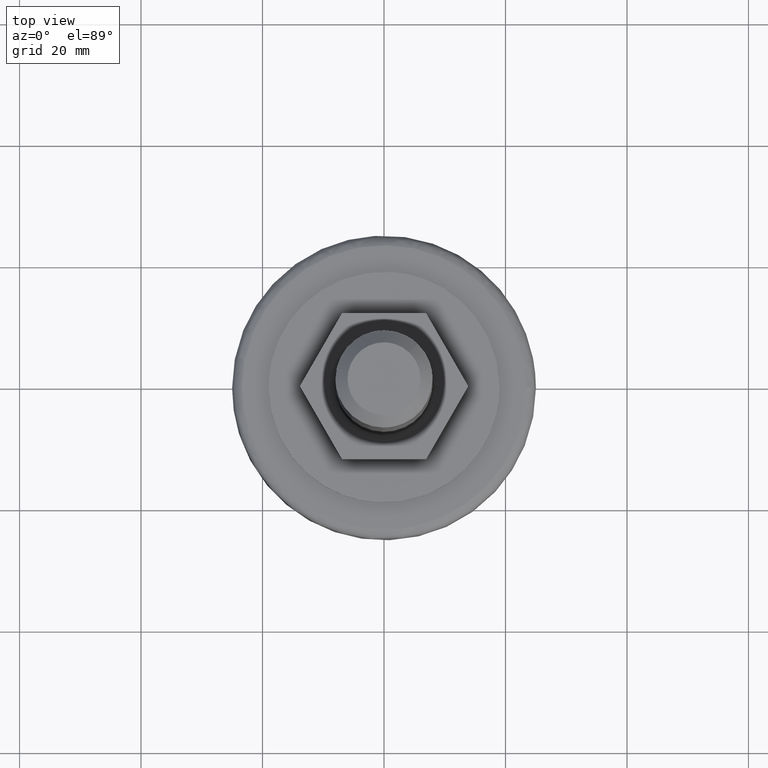
[diagram: clean part render]
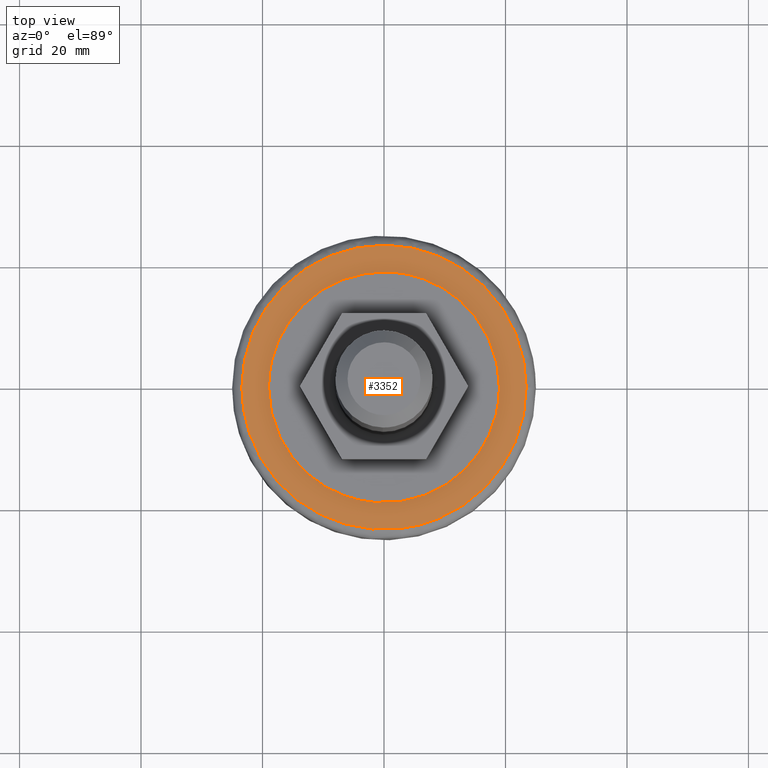
[diagram: same view with one face highlighted and labeled with its STEP entity id]
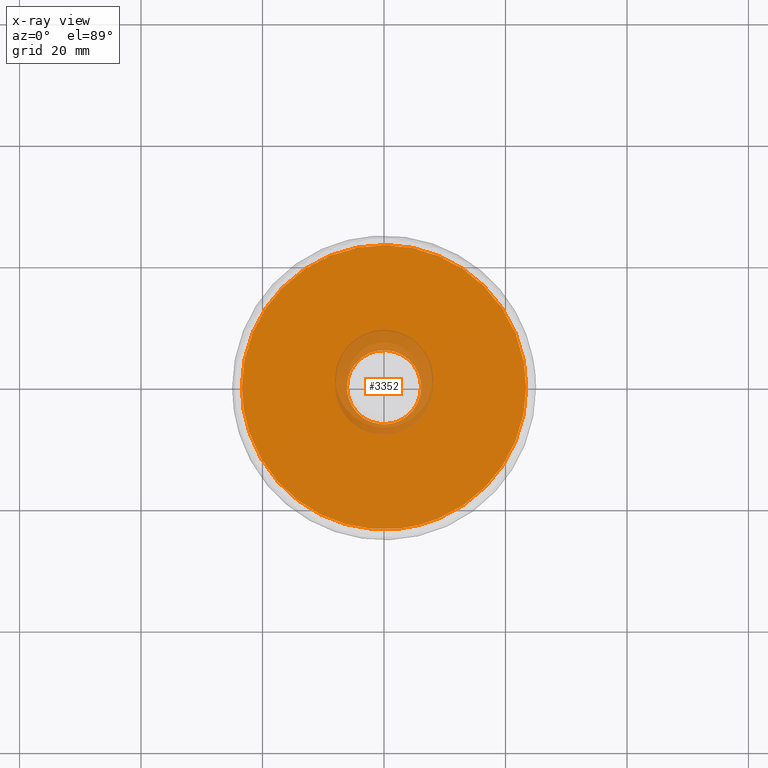
[diagram: x-ray of the same camera — body ghosted, the highlighted face saturated]
A machine part, top view. The second image highlights one B-rep face of the part: STEP entity #3352.
The next image is the same camera in x-ray: the body ghosted, the highlighted face saturated — about 7% of this face is hidden behind the body in this view.
In plain terms, the highlighted face is a freeform B-spline surface patch.
Its self-contained STEP definition (entity closure, byte-faithful):
#3030=CARTESIAN_POINT('',(0.372396091280524,-6.088622270366177,16.500000000000000));
#3031=VERTEX_POINT('',#3030);
#3037=CARTESIAN_POINT('',(6.100000000000001,0.0,16.500000000000000));
#3038=VERTEX_POINT('',#3037);
#3039=CARTESIAN_POINT('',(6.100000000000001,0.0,16.500000000000000));
#3040=CARTESIAN_POINT('',(6.100000000000001,-5.738307007902087,16.499999999999996));
#3041=CARTESIAN_POINT('',(0.372396091280524,-6.088622270366177,16.500000000000004));
#3049=(BOUNDED_CURVE()B_SPLINE_CURVE(2,(#3039,#3040,#3041),.UNSPECIFIED.,.F.,.U.)B_SPLINE_CURVE_WITH_KNOTS((3,3),(0.500000000000000,0.739332962235286),.UNSPECIFIED.)CURVE()GEOMETRIC_REPRESENTATION_ITEM()RATIONAL_B_SPLINE_CURVE((1.0,0.719603993290995,0.976072041658880))REPRESENTATION_ITEM(''));
#3050=EDGE_CURVE('',#3038,#3031,#3049,.T.);
#3052=CARTESIAN_POINT('',(-0.720008831480611,6.057358110809522,16.500000000000000));
#3053=VERTEX_POINT('',#3052);
#3054=CARTESIAN_POINT('',(-0.720008831480611,6.057358110809523,16.500000000000004));
#3055=CARTESIAN_POINT('',(-0.361267129951822,6.100000000000001,16.500000000000007));
#3056=CARTESIAN_POINT('',(0.0,6.100000000000001,16.500000000000000));
#3057=CARTESIAN_POINT('',(6.100000000000001,6.100000000000001,16.499999999999996));
#3058=CARTESIAN_POINT('',(6.100000000000001,0.0,16.500000000000000));
#3066=(BOUNDED_CURVE()B_SPLINE_CURVE(2,(#3054,#3055,#3056,#3057,#3058),.UNSPECIFIED.,.F.,.U.)B_SPLINE_CURVE_WITH_KNOTS((3,2,3),(0.229562473511494,0.250000000000000,0.500000000000000),.UNSPECIFIED.)CURVE()GEOMETRIC_REPRESENTATION_ITEM()RATIONAL_B_SPLINE_CURVE((0.956026754179750,0.976055948328785,1.0,0.707106781186547,1.0))REPRESENTATION_ITEM(''));
#3067=EDGE_CURVE('',#3053,#3038,#3066,.T.);
#3111=CARTESIAN_POINT('',(-6.100000000000001,0.0,16.500000000000000));
#3112=VERTEX_POINT('',#3111);
#3113=CARTESIAN_POINT('',(-6.100000000000001,0.0,16.500000000000000));
#3114=CARTESIAN_POINT('',(-6.100000000000001,5.417864608169345,16.500000000000004));
#3115=CARTESIAN_POINT('',(-0.720008831480611,6.057358110809522,16.500000000000000));
#3123=(BOUNDED_CURVE()B_SPLINE_CURVE(2,(#3113,#3114,#3115),.UNSPECIFIED.,.F.,.U.)B_SPLINE_CURVE_WITH_KNOTS((3,3),(0.0,0.229562473511494),.UNSPECIFIED.)CURVE()GEOMETRIC_REPRESENTATION_ITEM()RATIONAL_B_SPLINE_CURVE((1.0,0.731050832857763,0.956026754179750))REPRESENTATION_ITEM(''));
#3124=EDGE_CURVE('',#3112,#3053,#3123,.T.);
#3126=CARTESIAN_POINT('',(0.372396091280524,-6.088622270366177,16.500000000000004));
#3127=CARTESIAN_POINT('',(0.186371856239619,-6.100000000000001,16.500000000000004));
#3128=CARTESIAN_POINT('',(0.0,-6.100000000000001,16.500000000000000));
#3129=CARTESIAN_POINT('',(-6.100000000000001,-6.100000000000001,16.499999999999996));
#3130=CARTESIAN_POINT('',(-6.100000000000001,0.0,16.500000000000000));
#3138=(BOUNDED_CURVE()B_SPLINE_CURVE(2,(#3126,#3127,#3128,#3129,#3130),.UNSPECIFIED.,.F.,.U.)B_SPLINE_CURVE_WITH_KNOTS((3,2,3),(0.739332962235286,0.750000000000000,1.0),.UNSPECIFIED.)CURVE()GEOMETRIC_REPRESENTATION_ITEM()RATIONAL_B_SPLINE_CURVE((0.976072041658881,0.987502787895553,1.0,0.707106781186547,1.0))REPRESENTATION_ITEM(''));
#3139=EDGE_CURVE('',#3031,#3112,#3138,.T.);
#3196=CARTESIAN_POINT('',(2.701862966532961,-23.243492349329070,16.500000000000000));
#3197=VERTEX_POINT('',#3196);
#3211=CARTESIAN_POINT('',(-23.399999999999999,0.0,16.500000000000000));
#3212=VERTEX_POINT('',#3211);
#3213=CARTESIAN_POINT('',(2.701862966532961,-23.243492349329067,16.500000000000000));
#3214=CARTESIAN_POINT('',(1.355464400965130,-23.400000000000002,16.500000000000004));
#3215=CARTESIAN_POINT('',(0.0,-23.399999999999999,16.500000000000000));
#3216=CARTESIAN_POINT('',(-23.400000000000009,-23.400000000000009,16.499999999999993));
#3217=CARTESIAN_POINT('',(-23.399999999999999,0.0,16.500000000000000));
#3225=(BOUNDED_CURVE()B_SPLINE_CURVE(2,(#3213,#3214,#3215,#3216,#3217),.UNSPECIFIED.,.F.,.U.)B_SPLINE_CURVE_WITH_KNOTS((3,2,3),(0.729999999998922,0.750000000000000,1.0),.UNSPECIFIED.)CURVE()GEOMETRIC_REPRESENTATION_ITEM()RATIONAL_B_SPLINE_CURVE((0.956886118188538,0.976568542493661,1.0,0.707106781186548,1.0))REPRESENTATION_ITEM(''));
#3226=EDGE_CURVE('',#3197,#3212,#3225,.T.);
#3228=CARTESIAN_POINT('',(23.400000000002571,0.0,16.500000000000000));
#3229=VERTEX_POINT('',#3228);
#3230=CARTESIAN_POINT('',(-23.399999999999999,0.0,16.500000000000000));
#3231=CARTESIAN_POINT('',(-23.400000000000009,23.400000000000009,16.499999999999993));
#3232=CARTESIAN_POINT('',(0.0,23.399999999999999,16.500000000000000));
#3233=CARTESIAN_POINT('',(23.400000000000009,23.400000000000009,16.499999999999993));
#3234=CARTESIAN_POINT('',(23.400000000002571,0.0,16.500000000000000));
#3242=(BOUNDED_CURVE()B_SPLINE_CURVE(2,(#3230,#3231,#3232,#3233,#3234),.UNSPECIFIED.,.F.,.U.)B_SPLINE_CURVE_WITH_KNOTS((3,2,3),(0.0,0.250000000000000,0.500000000000000),.UNSPECIFIED.)CURVE()GEOMETRIC_REPRESENTATION_ITEM()RATIONAL_B_SPLINE_CURVE((1.0,0.707106781186548,1.0,0.707106781186548,1.0))REPRESENTATION_ITEM(''));
#3243=EDGE_CURVE('',#3212,#3229,#3242,.T.);
#3283=CARTESIAN_POINT('',(23.400000000002571,0.0,16.500000000000000));
#3284=CARTESIAN_POINT('',(23.400000000000006,-20.837505799216814,16.500000000000004));
#3285=CARTESIAN_POINT('',(2.701862966532961,-23.243492349329074,16.499999999999996));
#3293=(BOUNDED_CURVE()B_SPLINE_CURVE(2,(#3283,#3284,#3285),.UNSPECIFIED.,.F.,.U.)B_SPLINE_CURVE_WITH_KNOTS((3,3),(0.500000000000000,0.729999999998922),.UNSPECIFIED.)CURVE()GEOMETRIC_REPRESENTATION_ITEM()RATIONAL_B_SPLINE_CURVE((1.0,0.730538238692886,0.956886118188538))REPRESENTATION_ITEM(''));
#3294=EDGE_CURVE('',#3229,#3197,#3293,.T.);
#3336=CARTESIAN_POINT('',(-25.737659469967731,-25.737527566812201,16.500000000000000));
#3337=CARTESIAN_POINT('',(25.737661143668731,-25.737527566812201,16.500000000000000));
#3338=CARTESIAN_POINT('',(-25.737659469967731,25.737654868257628,16.500000000000000));
#3339=CARTESIAN_POINT('',(25.737661143668731,25.737654868257628,16.500000000000000));
#3340=B_SPLINE_SURFACE_WITH_KNOTS('',1,1,((#3336,#3338),(#3337,#3339)),.UNSPECIFIED.,.F.,.F.,.U.,(2,2),(2,2),(0.0,51.475320613636462),(0.0,51.475182435069833),.UNSPECIFIED.);
#3341=ORIENTED_EDGE('',*,*,#3226,.F.);
#3342=ORIENTED_EDGE('',*,*,#3294,.F.);
#3343=ORIENTED_EDGE('',*,*,#3243,.F.);
#3344=EDGE_LOOP('',(#3341,#3342,#3343));
#3345=FACE_OUTER_BOUND('',#3344,.T.);
#3346=ORIENTED_EDGE('',*,*,#3050,.T.);
#3347=ORIENTED_EDGE('',*,*,#3139,.T.);
#3348=ORIENTED_EDGE('',*,*,#3124,.T.);
#3349=ORIENTED_EDGE('',*,*,#3067,.T.);
#3350=EDGE_LOOP('',(#3346,#3347,#3348,#3349));
#3351=FACE_BOUND('',#3350,.T.);
#3352=ADVANCED_FACE('',(#3345,#3351),#3340,.T.);